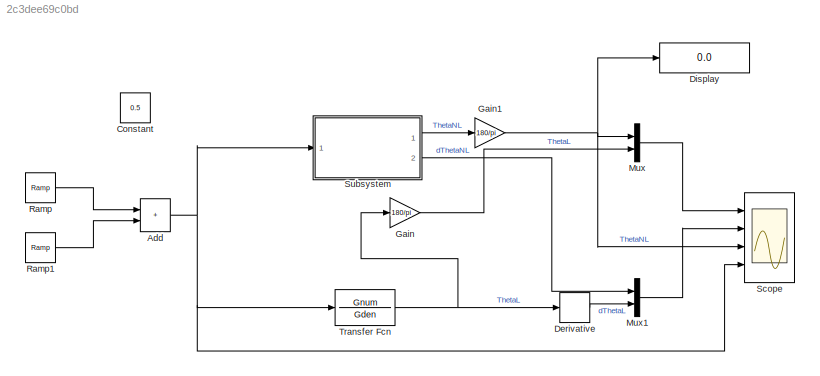
MODEL slx_2c3dee69c0bd
KIND model
CONFIG AbsTol = auto
CONFIG EnableMultiTasking = off
CONFIG FixedStep = 0.00001
CONFIG MaxStep = auto
CONFIG MinStep = auto
CONFIG RelTol = 1e-3
CONFIG SampleTimeConstraint = Unconstrained
CONFIG SolverName = FixedStepAuto
CONFIG StartTime = 0.0
CONFIG StopTime = 20
BLOCK [Sum] Add
  IconShape = rectangular
  Ports = [2, 1]
BLOCK [Constant] Constant
  Value = 0.5
BLOCK [Derivative] Derivative
BLOCK [Display] Display
  Decimation = 1
  Ports = [1]
BLOCK [Gain] Gain
  Gain = 180/pi
BLOCK [Gain] Gain1
  Gain = 180/pi
BLOCK [Mux] Mux
  DisplayOption = bar
  Inputs = 2
  Ports = [2, 1]
BLOCK [Mux] Mux1
  DisplayOption = bar
  Inputs = 2
  Ports = [2, 1]
BLOCK [Reference] Ramp  REF=simulink/Sources/Ramp
  Ports = [0, 1]
  SourceBlock = simulink/Sources/Ramp
  SourceProductBaseCode = SL
  SourceType = Ramp
BLOCK [Reference] Ramp1  REF=simulink/Sources/Ramp
  Ports = [0, 1]
  SourceBlock = simulink/Sources/Ramp
  SourceProductBaseCode = SL
  SourceType = Ramp
BLOCK [Scope] Scope
  Floating = off
  NumInputPorts = 4
  Ports = [4]
  ScopeSpecificationString = Simulink.scopes.TimeScopeBlockCfg('CurrentConfiguration', extmgr.ConfigurationSet(extmgr.Configuration('Core','General UI',true),extmgr.Configuration('Core','Source UI',true),extmgr.Configuration('Sources','WiredSimulink',true),extmgr.Configuration('Visuals','Time Domain',true,'SerializedDisplays',{struct('MinYLimReal','-14.01518','MaxYLimReal','144.51091','YLabelReal','','MinYLimMag','0.00000','M...<+3488ch>
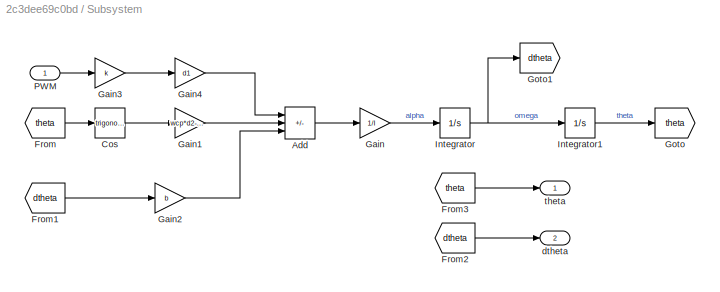
BLOCK [SubSystem] Subsystem
  Ports = [1, 2]
  RequestExecContextInheritance = off
BLOCK [Sum] Subsystem/Add
  IconShape = rectangular
  Inputs = ++-
  Ports = [3, 1]
BLOCK [Trigonometry] Subsystem/Cos
  Ports = [1, 1]
BLOCK [From] Subsystem/From
  GotoTag = theta
BLOCK [From] Subsystem/From1
  GotoTag = dtheta
BLOCK [From] Subsystem/From2
  GotoTag = dtheta
BLOCK [From] Subsystem/From3
  GotoTag = theta
BLOCK [Gain] Subsystem/Gain
  Gain = 1/I
BLOCK [Gain] Subsystem/Gain1
  Gain = wcp*d2-wm*d1-wb*e
BLOCK [Gain] Subsystem/Gain2
  Gain = b
BLOCK [Gain] Subsystem/Gain3
  Gain = k
BLOCK [Gain] Subsystem/Gain4
  Gain = d1
BLOCK [Goto] Subsystem/Goto
  GotoTag = theta
BLOCK [Goto] Subsystem/Goto1
  GotoTag = dtheta
BLOCK [Integrator] Subsystem/Integrator
  Ports = [1, 1]
BLOCK [Integrator] Subsystem/Integrator1
  Ports = [1, 1]
BLOCK [Inport] Subsystem/PWM
BLOCK [Outport] Subsystem/dtheta
  Port = 2
BLOCK [Outport] Subsystem/theta
BLOCK [TransferFcn] Transfer Fcn
  Denominator = Gden
  Numerator = Gnum
NET Add:1 -> Scope:4, Subsystem:1, Transfer Fcn:1
LINE Derivative:1 -> Mux1:2
NET Gain1:1 -> Display:1, Mux:1, Scope:3
LINE Gain:1 -> Mux:2
LINE Mux1:1 -> Scope:2
LINE Mux:1 -> Scope:1
LINE Ramp1:1 -> Add:2
LINE Ramp:1 -> Add:1
LINE Subsystem/Add:1 -> Subsystem/Gain:1
LINE Subsystem/Cos:1 -> Subsystem/Gain1:1
LINE Subsystem/From1:1 -> Subsystem/Gain2:1
LINE Subsystem/From2:1 -> Subsystem/dtheta:1
LINE Subsystem/From3:1 -> Subsystem/theta:1
LINE Subsystem/From:1 -> Subsystem/Cos:1
LINE Subsystem/Gain1:1 -> Subsystem/Add:2
LINE Subsystem/Gain2:1 -> Subsystem/Add:3
LINE Subsystem/Gain3:1 -> Subsystem/Gain4:1
LINE Subsystem/Gain4:1 -> Subsystem/Add:1
LINE Subsystem/Gain:1 -> Subsystem/Integrator:1
LINE Subsystem/Integrator1:1 -> Subsystem/Goto:1
NET Subsystem/Integrator:1 -> Subsystem/Goto1:1, Subsystem/Integrator1:1
LINE Subsystem/PWM:1 -> Subsystem/Gain3:1
LINE Subsystem:1 -> Gain1:1
LINE Subsystem:2 -> Mux1:1
NET Transfer Fcn:1 -> Derivative:1, Gain:1
note: NET lines group one-source signal fan-out (src -> all destinations, sorted); 1:1 wires keep LINE
